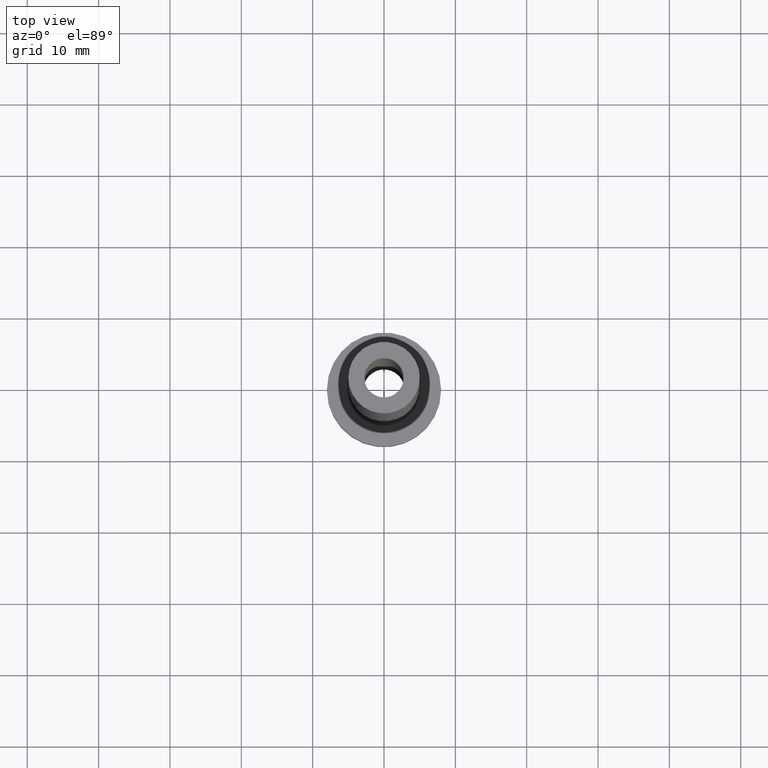
[diagram: clean part render]
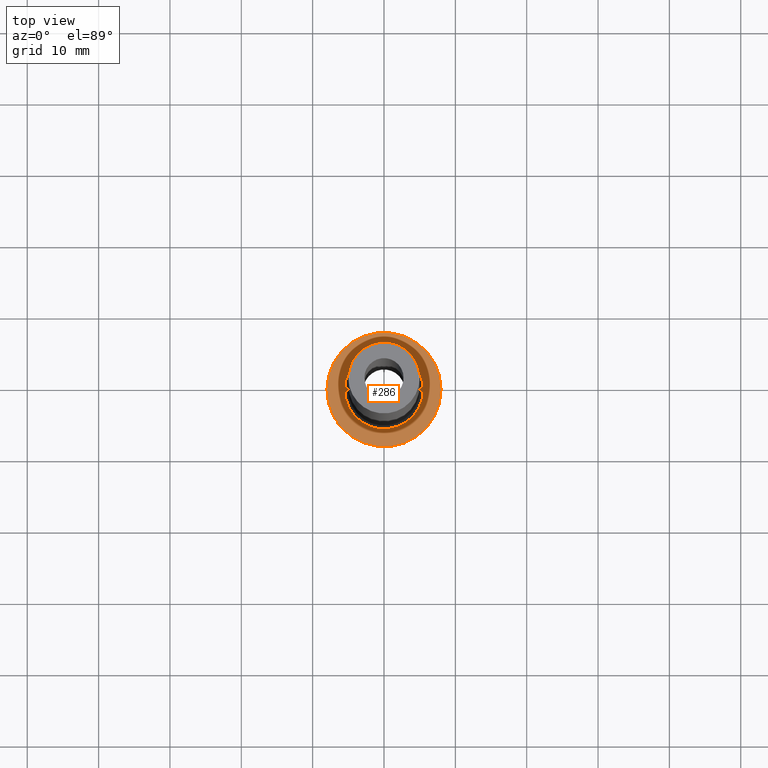
[diagram: same view with one face highlighted and labeled with its STEP entity id]
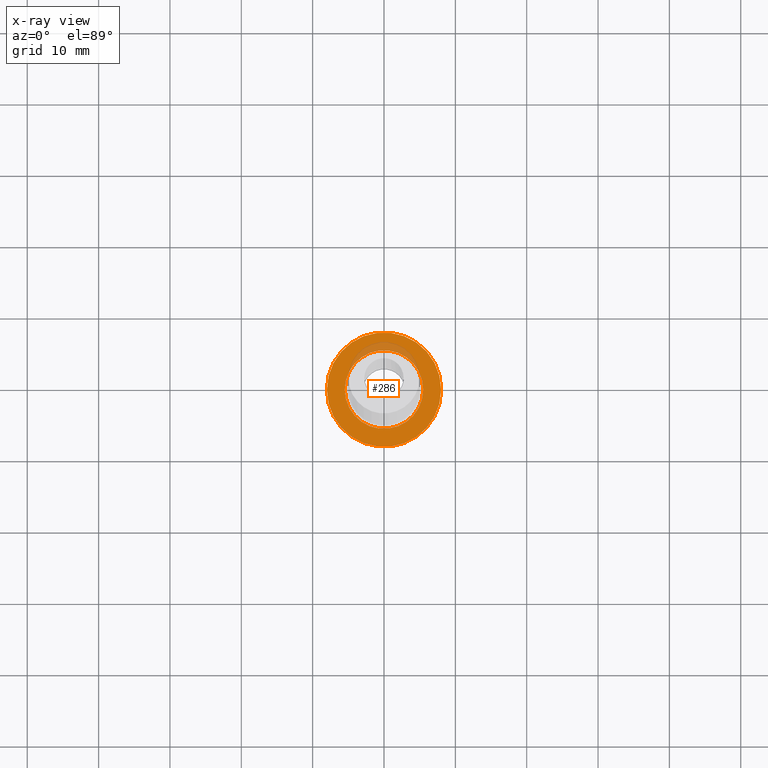
[diagram: x-ray of the same camera — body ghosted, the highlighted face saturated]
A machine part, top view. The second image highlights one B-rep face of the part: STEP entity #286.
The next image is the same camera in x-ray: the body ghosted, the highlighted face saturated — about 9% of this face is hidden behind the body in this view.
In plain terms, the highlighted planar face has unit normal (0, 0, 1).
Its self-contained STEP definition (entity closure, byte-faithful):
#2 = EDGE_CURVE ( 'NONE', #168, #113, #225, .T. ) ;
#8 = DIRECTION ( 'NONE',  ( 0.000000000000000000, 0.000000000000000000, 1.000000000000000000 ) ) ;
#12 = EDGE_LOOP ( 'NONE', ( #86, #351 ) ) ;
#15 = AXIS2_PLACEMENT_3D ( 'NONE', #98, #200, #345 ) ;
#18 = EDGE_LOOP ( 'NONE', ( #284, #273 ) ) ;
#21 = DIRECTION ( 'NONE',  ( 1.000000000000000000, 0.000000000000000000, 0.000000000000000000 ) ) ;
#41 = AXIS2_PLACEMENT_3D ( 'NONE', #247, #8, #329 ) ;
#74 = DIRECTION ( 'NONE',  ( 0.000000000000000000, 0.000000000000000000, 1.000000000000000000 ) ) ;
#86 = ORIENTED_EDGE ( 'NONE', *, *, #245, .T. ) ;
#87 = CARTESIAN_POINT ( 'NONE',  ( 8.000000000000000000, 9.797174393178825657E-16, 5.000000000000000000 ) ) ;
#98 = CARTESIAN_POINT ( 'NONE',  ( 0.000000000000000000, 0.000000000000000000, 5.000000000000000000 ) ) ;
#102 = CARTESIAN_POINT ( 'NONE',  ( 0.000000000000000000, 0.000000000000000000, 5.000000000000000000 ) ) ;
#112 = CIRCLE ( 'NONE', #372, 5.500000000000000000 ) ;
#113 = VERTEX_POINT ( 'NONE', #441 ) ;
#166 = CARTESIAN_POINT ( 'NONE',  ( 5.500000000000000000, 0.000000000000000000, 5.000000000000002665 ) ) ;
#168 = VERTEX_POINT ( 'NONE', #166 ) ;
#200 = DIRECTION ( 'NONE',  ( 0.000000000000000000, 0.000000000000000000, 1.000000000000000000 ) ) ;
#211 = EDGE_CURVE ( 'NONE', #454, #403, #459, .T. ) ;
#215 = CARTESIAN_POINT ( 'NONE',  ( 0.000000000000000000, 0.000000000000000000, 5.000000000000000000 ) ) ;
#225 = CIRCLE ( 'NONE', #267, 5.500000000000000000 ) ;
#245 = EDGE_CURVE ( 'NONE', #403, #454, #328, .T. ) ;
#247 = CARTESIAN_POINT ( 'NONE',  ( 0.000000000000000000, 0.000000000000000000, 5.000000000000000000 ) ) ;
#249 = DIRECTION ( 'NONE',  ( 1.000000000000000000, 0.000000000000000000, -0.000000000000000000 ) ) ;
#253 = FACE_BOUND ( 'NONE', #18, .T. ) ;
#267 = AXIS2_PLACEMENT_3D ( 'NONE', #102, #408, #21 ) ;
#273 = ORIENTED_EDGE ( 'NONE', *, *, #316, .T. ) ;
#284 = ORIENTED_EDGE ( 'NONE', *, *, #2, .T. ) ;
#286 = ADVANCED_FACE ( 'NONE', ( #253, #395 ), #292, .T. ) ;
#290 = CARTESIAN_POINT ( 'NONE',  ( 0.000000000000000000, 0.000000000000000000, 5.000000000000000000 ) ) ;
#292 = PLANE ( 'NONE',  #313 ) ;
#313 = AXIS2_PLACEMENT_3D ( 'NONE', #290, #74, #249 ) ;
#316 = EDGE_CURVE ( 'NONE', #113, #168, #112, .T. ) ;
#319 = CARTESIAN_POINT ( 'NONE',  ( -8.000000000000000000, 0.000000000000000000, 5.000000000000000000 ) ) ;
#328 = CIRCLE ( 'NONE', #41, 8.000000000000000000 ) ;
#329 = DIRECTION ( 'NONE',  ( 1.000000000000000000, 0.000000000000000000, 0.000000000000000000 ) ) ;
#345 = DIRECTION ( 'NONE',  ( 1.000000000000000000, 0.000000000000000000, 0.000000000000000000 ) ) ;
#351 = ORIENTED_EDGE ( 'NONE', *, *, #211, .T. ) ;
#365 = DIRECTION ( 'NONE',  ( -0.000000000000000000, -0.000000000000000000, -1.000000000000000000 ) ) ;
#372 = AXIS2_PLACEMENT_3D ( 'NONE', #215, #365, #393 ) ;
#393 = DIRECTION ( 'NONE',  ( 1.000000000000000000, 0.000000000000000000, 0.000000000000000000 ) ) ;
#395 = FACE_OUTER_BOUND ( 'NONE', #12, .T. ) ;
#403 = VERTEX_POINT ( 'NONE', #319 ) ;
#408 = DIRECTION ( 'NONE',  ( -0.000000000000000000, -0.000000000000000000, -1.000000000000000000 ) ) ;
#441 = CARTESIAN_POINT ( 'NONE',  ( -5.500000000000000000, 6.735557395310442023E-16, 5.000000000000002665 ) ) ;
#454 = VERTEX_POINT ( 'NONE', #87 ) ;
#459 = CIRCLE ( 'NONE', #15, 8.000000000000000000 ) ;